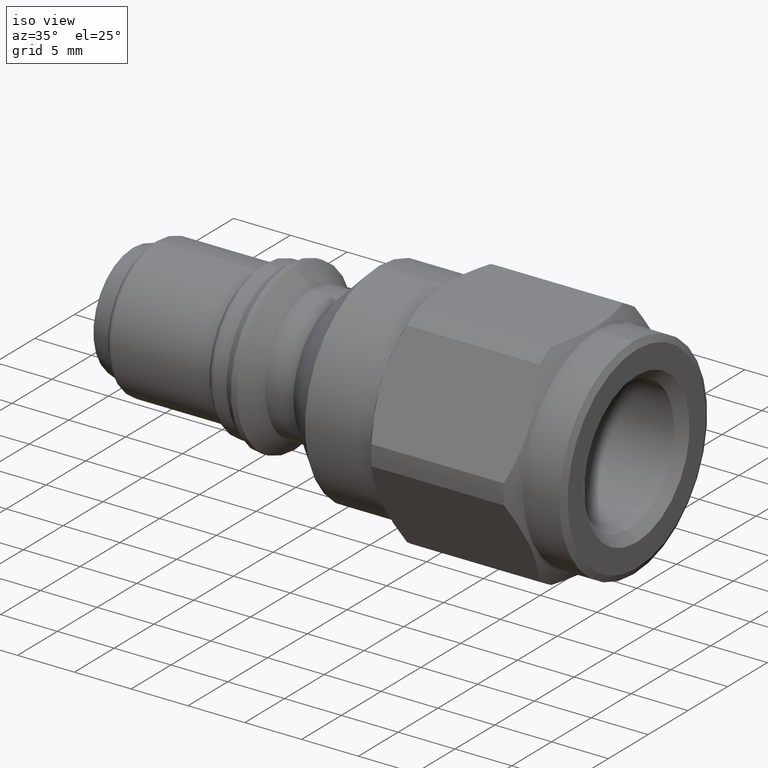
[diagram: clean part render]
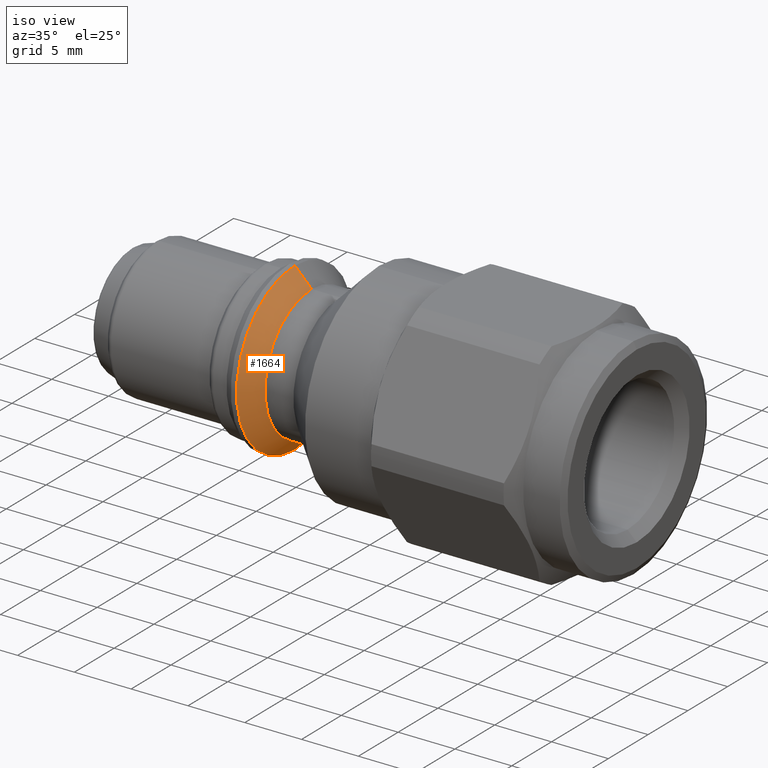
[diagram: same view with one face highlighted and labeled with its STEP entity id]
A machine part, iso view. The second image highlights one B-rep face of the part: STEP entity #1664.
In plain terms, the highlighted conical surface has half-angle 45 deg.
Its self-contained STEP definition (entity closure, byte-faithful):
#154 = EDGE_CURVE ( 'NONE', #674, #677, #1046, .T. ) ;
#182 = AXIS2_PLACEMENT_3D ( 'NONE', #575, #574, #571 ) ;
#264 = AXIS2_PLACEMENT_3D ( 'NONE', #1635, #1631, #1634 ) ;
#280 = EDGE_CURVE ( 'NONE', #742, #719, #919, .T. ) ;
#312 = EDGE_CURVE ( 'NONE', #677, #719, #883, .T. ) ;
#319 = EDGE_CURVE ( 'NONE', #674, #742, #876, .T. ) ;
#571 = DIRECTION ( 'NONE',  ( 0.0000000000000000000, 0.0000000000000000000, 1.000000000000000000 ) ) ;
#574 = DIRECTION ( 'NONE',  ( -1.000000000000000000, 0.0000000000000000000, 0.0000000000000000000 ) ) ;
#575 = CARTESIAN_POINT ( 'NONE',  ( -30.10000000003974900, 0.0000000000000000000, 0.0000000000000000000 ) ) ;
#674 = VERTEX_POINT ( 'NONE', #1464 ) ;
#677 = VERTEX_POINT ( 'NONE', #1461 ) ;
#719 = VERTEX_POINT ( 'NONE', #1536 ) ;
#725 = DIRECTION ( 'NONE',  ( -0.7071067811865410200, 8.659560562355013000E-017, -0.7071067811865540100 ) ) ;
#731 = CARTESIAN_POINT ( 'NONE',  ( -28.62500000003980100, 7.164183775012016400E-016, -5.850000000000000500 ) ) ;
#742 = VERTEX_POINT ( 'NONE', #1565 ) ;
#815 = CONICAL_SURFACE ( 'NONE', #1418, 5.850000000000000500, 0.7853981633974574900 ) ;
#816 = FACE_OUTER_BOUND ( 'NONE', #1323, .T. ) ;
#876 = CIRCLE ( 'NONE', #264, 5.850000000000000500 ) ;
#883 = CIRCLE ( 'NONE', #182, 7.325000000000000200 ) ;
#918 = VECTOR ( 'NONE', #1859, 1000.000000000000000 ) ;
#919 = LINE ( 'NONE', #1860, #918 ) ;
#1045 = VECTOR ( 'NONE', #725, 1000.000000000000000 ) ;
#1046 = LINE ( 'NONE', #731, #1045 ) ;
#1323 = EDGE_LOOP ( 'NONE', ( #1345, #1342, #1367, #1368 ) ) ;
#1342 = ORIENTED_EDGE ( 'NONE', *, *, #319, .T. ) ;
#1345 = ORIENTED_EDGE ( 'NONE', *, *, #154, .F. ) ;
#1367 = ORIENTED_EDGE ( 'NONE', *, *, #280, .T. ) ;
#1368 = ORIENTED_EDGE ( 'NONE', *, *, #312, .F. ) ;
#1418 = AXIS2_PLACEMENT_3D ( 'NONE', #1553, #1555, #1554 ) ;
#1461 = CARTESIAN_POINT ( 'NONE',  ( -30.10000000003974900, 8.970537803754362200E-016, -7.325000000000000200 ) ) ;
#1464 = CARTESIAN_POINT ( 'NONE',  ( -28.62500000003980100, 8.067360789383189300E-016, -5.850000000000000500 ) ) ;
#1536 = CARTESIAN_POINT ( 'NONE',  ( -30.10000000003974900, 0.0000000000000000000, 7.325000000000000200 ) ) ;
#1553 = CARTESIAN_POINT ( 'NONE',  ( -28.62500000003980100, 0.0000000000000000000, 0.0000000000000000000 ) ) ;
#1554 = DIRECTION ( 'NONE',  ( 0.0000000000000000000, 0.0000000000000000000, 1.000000000000000000 ) ) ;
#1555 = DIRECTION ( 'NONE',  ( -1.000000000000000000, 0.0000000000000000000, 0.0000000000000000000 ) ) ;
#1565 = CARTESIAN_POINT ( 'NONE',  ( -28.62500000003980100, 0.0000000000000000000, 5.850000000000000500 ) ) ;
#1631 = DIRECTION ( 'NONE',  ( -1.000000000000000000, 0.0000000000000000000, 0.0000000000000000000 ) ) ;
#1634 = DIRECTION ( 'NONE',  ( 0.0000000000000000000, 0.0000000000000000000, 1.000000000000000000 ) ) ;
#1635 = CARTESIAN_POINT ( 'NONE',  ( -28.62500000003980100, 0.0000000000000000000, 0.0000000000000000000 ) ) ;
#1664 = ADVANCED_FACE ( 'NONE', ( #816 ), #815, .T. ) ;
#1859 = DIRECTION ( 'NONE',  ( -0.7071067811865410200, 0.0000000000000000000, 0.7071067811865540100 ) ) ;
#1860 = CARTESIAN_POINT ( 'NONE',  ( -28.62500000003980100, 0.0000000000000000000, 5.850000000000000500 ) ) ;